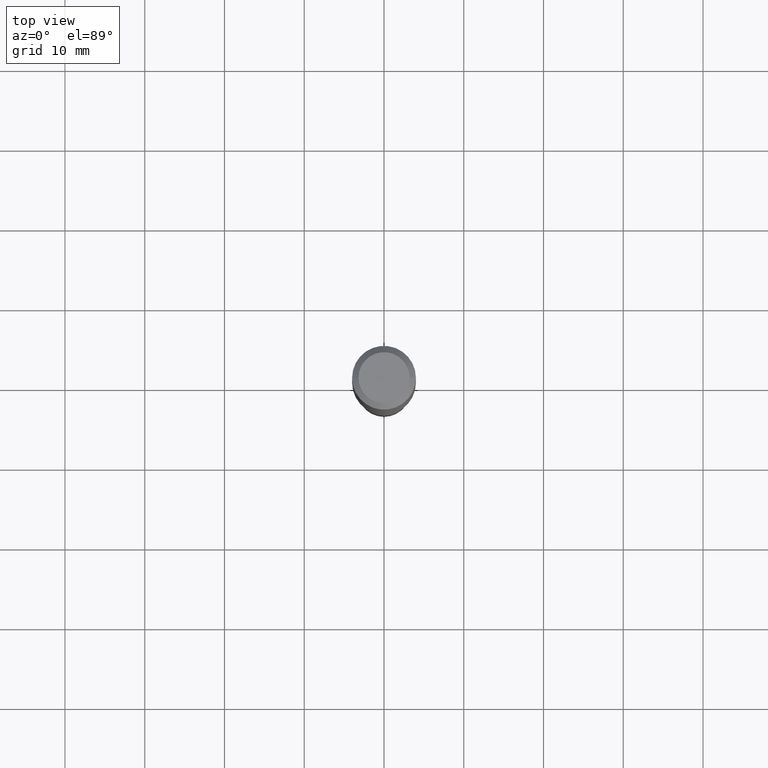
[diagram: clean part render]
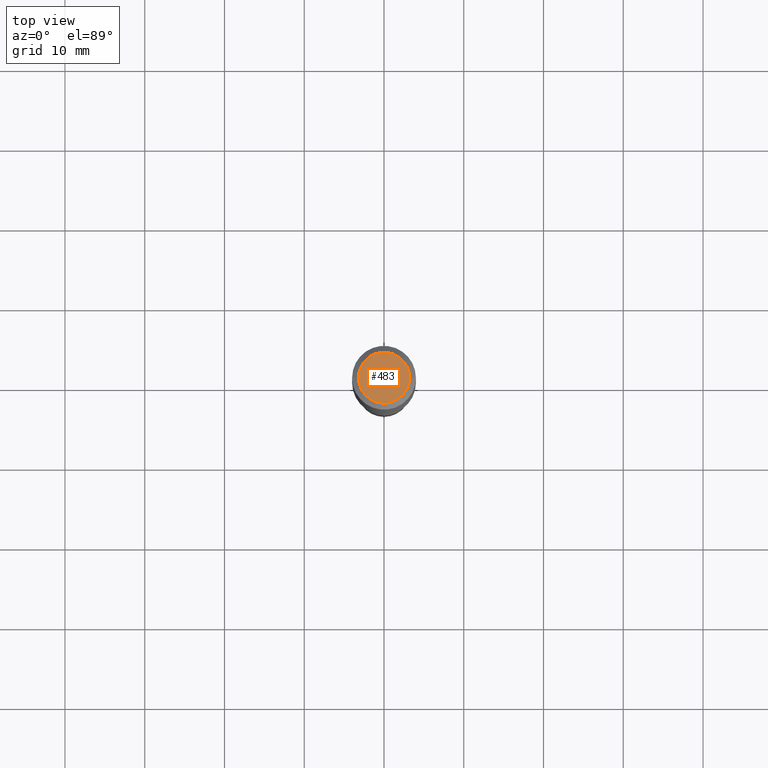
[diagram: same view with one face highlighted and labeled with its STEP entity id]
A machine part, top view. The second image highlights one B-rep face of the part: STEP entity #483.
In plain terms, the highlighted planar face has unit normal (0, -0, -1).
Its self-contained STEP definition (entity closure, byte-faithful):
#34 = CIRCLE ( 'NONE', #81, 0.1260000000000000009 ) ;
#71 = PLANE ( 'NONE',  #195 ) ;
#79 = DIRECTION ( 'NONE',  ( -2.445468806185136597E-29, 3.491481338843145583E-15, 1.000000000000000000 ) ) ;
#80 = CARTESIAN_POINT ( 'NONE',  ( -9.439721640706201686E-47, 1.347742071746726764E-32, 3.860086710912459732E-18 ) ) ;
#81 = AXIS2_PLACEMENT_3D ( 'NONE', #486, #85, #263 ) ;
#85 = DIRECTION ( 'NONE',  ( -2.445468806185136597E-29, 3.491481338843145583E-15, 1.000000000000000000 ) ) ;
#112 = EDGE_CURVE ( 'NONE', #311, #201, #218, .T. ) ;
#195 = AXIS2_PLACEMENT_3D ( 'NONE', #434, #208, #316 ) ;
#201 = VERTEX_POINT ( 'NONE', #257 ) ;
#208 = DIRECTION ( 'NONE',  ( 2.438088387897960049E-29, -3.491481338843145188E-15, -1.000000000000000000 ) ) ;
#218 = CIRCLE ( 'NONE', #382, 0.1260000000000000009 ) ;
#219 = DIRECTION ( 'NONE',  ( 1.000000000000000000, -6.982962677686265922E-15, 4.876281427513067258E-29 ) ) ;
#236 = FACE_OUTER_BOUND ( 'NONE', #357, .T. ) ;
#257 = CARTESIAN_POINT ( 'NONE',  ( -0.1260000000000000009, 9.348441284752484904E-16, 3.860086710906114178E-18 ) ) ;
#263 = DIRECTION ( 'NONE',  ( 1.000000000000000000, -6.982962677686265922E-15, 4.876281427513067258E-29 ) ) ;
#277 = ORIENTED_EDGE ( 'NONE', *, *, #292, .T. ) ;
#292 = EDGE_CURVE ( 'NONE', #201, #311, #34, .T. ) ;
#311 = VERTEX_POINT ( 'NONE', #466 ) ;
#316 = DIRECTION ( 'NONE',  ( -1.000000000000000000, 6.982962677686265922E-15, -4.876176775795935793E-29 ) ) ;
#357 = EDGE_LOOP ( 'NONE', ( #277, #392 ) ) ;
#382 = AXIS2_PLACEMENT_3D ( 'NONE', #80, #79, #219 ) ;
#392 = ORIENTED_EDGE ( 'NONE', *, *, #112, .T. ) ;
#434 = CARTESIAN_POINT ( 'NONE',  ( -4.719860820353100843E-47, 6.738710358733633822E-33, 1.930043355456229866E-18 ) ) ;
#466 = CARTESIAN_POINT ( 'NONE',  ( 0.1260000000000000009, -1.027466422270894443E-15, 3.860086710919128072E-18 ) ) ;
#483 = ADVANCED_FACE ( 'NONE', ( #236 ), #71, .F. ) ;
#486 = CARTESIAN_POINT ( 'NONE',  ( -9.439721640706201686E-47, 1.347742071746726764E-32, 3.860086710912459732E-18 ) ) ;